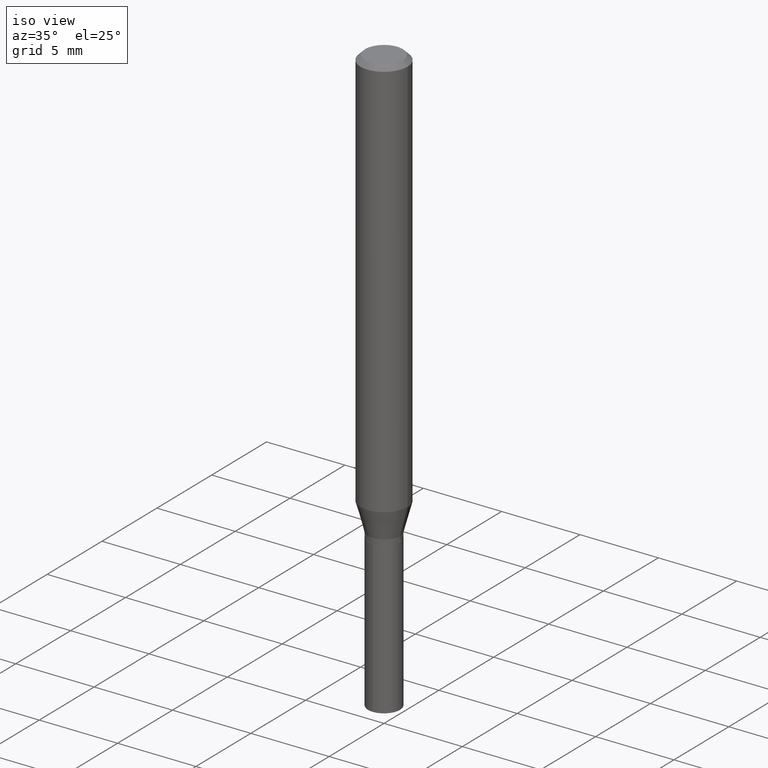
[diagram: clean part render]
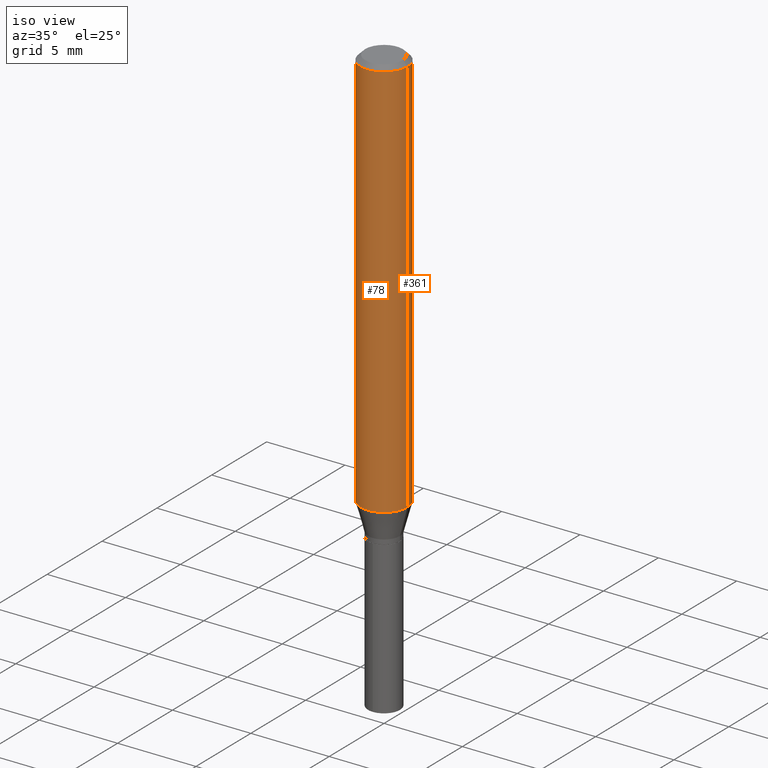
[diagram: same view with one multi-face feature highlighted, each face labeled with its STEP entity id]
A machine part, iso view. The highlighted faces form ONE feature: a constant-radius fillet chain: 2 tangent blend faces with common blend radius 1.4999 mm. The faces share edges in the B-rep.
Their STEP definitions:
[1] entity #78 (Cylinder):
#6 = DIRECTION ( 'NONE',  ( -2.445468806185136877E-29, 3.491481338843145188E-15, 1.000000000000000000 ) ) ;
#11 = DIRECTION ( 'NONE',  ( 1.000000000000000000, -6.982962677686266711E-15, 4.876176775795936353E-29 ) ) ;
#15 = ORIENTED_EDGE ( 'NONE', *, *, #26, .F. ) ;
#25 = LINE ( 'NONE', #103, #437 ) ;
#26 = EDGE_CURVE ( 'NONE', #128, #424, #334, .T. ) ;
#30 = CARTESIAN_POINT ( 'NONE',  ( 0.05905000000000013016, -3.945598204735519774E-15, -1.011964239736947935 ) ) ;
#44 = ORIENTED_EDGE ( 'NONE', *, *, #191, .T. ) ;
#58 = EDGE_CURVE ( 'NONE', #194, #424, #25, .T. ) ;
#69 = CYLINDRICAL_SURFACE ( 'NONE', #399, 0.05905000000000006771 ) ;
#77 = LINE ( 'NONE', #458, #299 ) ;
#78 = ADVANCED_FACE ( 'NONE', ( #249 ), #69, .T. ) ;
#103 = CARTESIAN_POINT ( 'NONE',  ( 0.05905000000000006771, -4.123439461173745257E-16, 2.879382386107503723E-30 ) ) ;
#108 = CARTESIAN_POINT ( 'NONE',  ( 2.474726981251563190E-29, -3.533254258618144854E-15, -1.011964239736947935 ) ) ;
#128 = VERTEX_POINT ( 'NONE', #193 ) ;
#134 = AXIS2_PLACEMENT_3D ( 'NONE', #108, #448, #486 ) ;
#141 = CARTESIAN_POINT ( 'NONE',  ( 2.888098660104665956E-31, -4.123439461173782728E-17, -0.01181000000000007912 ) ) ;
#153 = EDGE_LOOP ( 'NONE', ( #400, #44, #163, #15 ) ) ;
#163 = ORIENTED_EDGE ( 'NONE', *, *, #58, .T. ) ;
#165 = DIRECTION ( 'NONE',  ( -2.445468806185136597E-29, 3.491481338843145583E-15, 1.000000000000000000 ) ) ;
#191 = EDGE_CURVE ( 'NONE', #306, #194, #371, .T. ) ;
#193 = CARTESIAN_POINT ( 'NONE',  ( -0.05905000000000000526, -1.367668841148601207E-15, -0.01181000000000007912 ) ) ;
#194 = VERTEX_POINT ( 'NONE', #30 ) ;
#200 = CARTESIAN_POINT ( 'NONE',  ( 0.05905000000000000526, -4.535783407291119586E-16, -0.01181000000000007912 ) ) ;
#249 = FACE_OUTER_BOUND ( 'NONE', #153, .T. ) ;
#274 = CARTESIAN_POINT ( 'NONE',  ( 0.000000000000000000, 0.000000000000000000, 0.000000000000000000 ) ) ;
#299 = VECTOR ( 'NONE', #6, 39.37007874015748143 ) ;
#306 = VERTEX_POINT ( 'NONE', #308 ) ;
#308 = CARTESIAN_POINT ( 'NONE',  ( -0.05905000000000013016, -3.113678773151804967E-15, -1.011964239736947935 ) ) ;
#313 = EDGE_CURVE ( 'NONE', #306, #128, #77, .T. ) ;
#334 = CIRCLE ( 'NONE', #385, 0.05905000000000000526 ) ;
#339 = DIRECTION ( 'NONE',  ( -2.445468806185136877E-29, 3.491481338843145188E-15, 1.000000000000000000 ) ) ;
#371 = CIRCLE ( 'NONE', #134, 0.05905000000000013016 ) ;
#385 = AXIS2_PLACEMENT_3D ( 'NONE', #141, #165, #431 ) ;
#399 = AXIS2_PLACEMENT_3D ( 'NONE', #274, #407, #11 ) ;
#400 = ORIENTED_EDGE ( 'NONE', *, *, #313, .F. ) ;
#407 = DIRECTION ( 'NONE',  ( -2.445468806185136597E-29, 3.491481338843145583E-15, 1.000000000000000000 ) ) ;
#424 = VERTEX_POINT ( 'NONE', #200 ) ;
#431 = DIRECTION ( 'NONE',  ( 1.000000000000000000, -6.982962677686267499E-15, 0.000000000000000000 ) ) ;
#437 = VECTOR ( 'NONE', #339, 39.37007874015748143 ) ;
#448 = DIRECTION ( 'NONE',  ( -2.445468806185136597E-29, 3.491481338843145583E-15, 1.000000000000000000 ) ) ;
#458 = CARTESIAN_POINT ( 'NONE',  ( -0.05905000000000006771, 4.195754854663396409E-16, -2.904631170795525045E-30 ) ) ;
#486 = DIRECTION ( 'NONE',  ( 1.000000000000000000, -6.982962677686265133E-15, 0.000000000000000000 ) ) ;
[2] entity #361 (Cylinder):
#2 = ORIENTED_EDGE ( 'NONE', *, *, #58, .F. ) ;
#6 = DIRECTION ( 'NONE',  ( -2.445468806185136877E-29, 3.491481338843145188E-15, 1.000000000000000000 ) ) ;
#25 = LINE ( 'NONE', #103, #437 ) ;
#28 = DIRECTION ( 'NONE',  ( 1.000000000000000000, -6.982962677686265133E-15, 0.000000000000000000 ) ) ;
#30 = CARTESIAN_POINT ( 'NONE',  ( 0.05905000000000013016, -3.945598204735519774E-15, -1.011964239736947935 ) ) ;
#46 = CARTESIAN_POINT ( 'NONE',  ( 2.474726981251563190E-29, -3.533254258618144854E-15, -1.011964239736947935 ) ) ;
#49 = DIRECTION ( 'NONE',  ( 1.000000000000000000, -6.982962677686266711E-15, 4.876176775795936353E-29 ) ) ;
#58 = EDGE_CURVE ( 'NONE', #194, #424, #25, .T. ) ;
#62 = EDGE_CURVE ( 'NONE', #194, #306, #210, .T. ) ;
#77 = LINE ( 'NONE', #458, #299 ) ;
#90 = ORIENTED_EDGE ( 'NONE', *, *, #255, .F. ) ;
#103 = CARTESIAN_POINT ( 'NONE',  ( 0.05905000000000006771, -4.123439461173745257E-16, 2.879382386107503723E-30 ) ) ;
#112 = CARTESIAN_POINT ( 'NONE',  ( 2.888098660104665956E-31, -4.123439461173782728E-17, -0.01181000000000007912 ) ) ;
#127 = DIRECTION ( 'NONE',  ( -2.445468806185136597E-29, 3.491481338843145583E-15, 1.000000000000000000 ) ) ;
#128 = VERTEX_POINT ( 'NONE', #193 ) ;
#143 = DIRECTION ( 'NONE',  ( 1.000000000000000000, -6.982962677686267499E-15, 0.000000000000000000 ) ) ;
#180 = FACE_OUTER_BOUND ( 'NONE', #362, .T. ) ;
#193 = CARTESIAN_POINT ( 'NONE',  ( -0.05905000000000000526, -1.367668841148601207E-15, -0.01181000000000007912 ) ) ;
#194 = VERTEX_POINT ( 'NONE', #30 ) ;
#200 = CARTESIAN_POINT ( 'NONE',  ( 0.05905000000000000526, -4.535783407291119586E-16, -0.01181000000000007912 ) ) ;
#210 = CIRCLE ( 'NONE', #309, 0.05905000000000013016 ) ;
#255 = EDGE_CURVE ( 'NONE', #424, #128, #481, .T. ) ;
#264 = ORIENTED_EDGE ( 'NONE', *, *, #62, .T. ) ;
#272 = AXIS2_PLACEMENT_3D ( 'NONE', #466, #127, #49 ) ;
#299 = VECTOR ( 'NONE', #6, 39.37007874015748143 ) ;
#306 = VERTEX_POINT ( 'NONE', #308 ) ;
#308 = CARTESIAN_POINT ( 'NONE',  ( -0.05905000000000013016, -3.113678773151804967E-15, -1.011964239736947935 ) ) ;
#309 = AXIS2_PLACEMENT_3D ( 'NONE', #46, #482, #28 ) ;
#313 = EDGE_CURVE ( 'NONE', #306, #128, #77, .T. ) ;
#320 = CYLINDRICAL_SURFACE ( 'NONE', #272, 0.05905000000000006771 ) ;
#323 = ORIENTED_EDGE ( 'NONE', *, *, #313, .T. ) ;
#339 = DIRECTION ( 'NONE',  ( -2.445468806185136877E-29, 3.491481338843145188E-15, 1.000000000000000000 ) ) ;
#351 = AXIS2_PLACEMENT_3D ( 'NONE', #112, #417, #143 ) ;
#361 = ADVANCED_FACE ( 'NONE', ( #180 ), #320, .T. ) ;
#362 = EDGE_LOOP ( 'NONE', ( #264, #323, #90, #2 ) ) ;
#417 = DIRECTION ( 'NONE',  ( -2.445468806185136597E-29, 3.491481338843145583E-15, 1.000000000000000000 ) ) ;
#424 = VERTEX_POINT ( 'NONE', #200 ) ;
#437 = VECTOR ( 'NONE', #339, 39.37007874015748143 ) ;
#458 = CARTESIAN_POINT ( 'NONE',  ( -0.05905000000000006771, 4.195754854663396409E-16, -2.904631170795525045E-30 ) ) ;
#466 = CARTESIAN_POINT ( 'NONE',  ( 0.000000000000000000, 0.000000000000000000, 0.000000000000000000 ) ) ;
#481 = CIRCLE ( 'NONE', #351, 0.05905000000000000526 ) ;
#482 = DIRECTION ( 'NONE',  ( -2.445468806185136597E-29, 3.491481338843145583E-15, 1.000000000000000000 ) ) ;